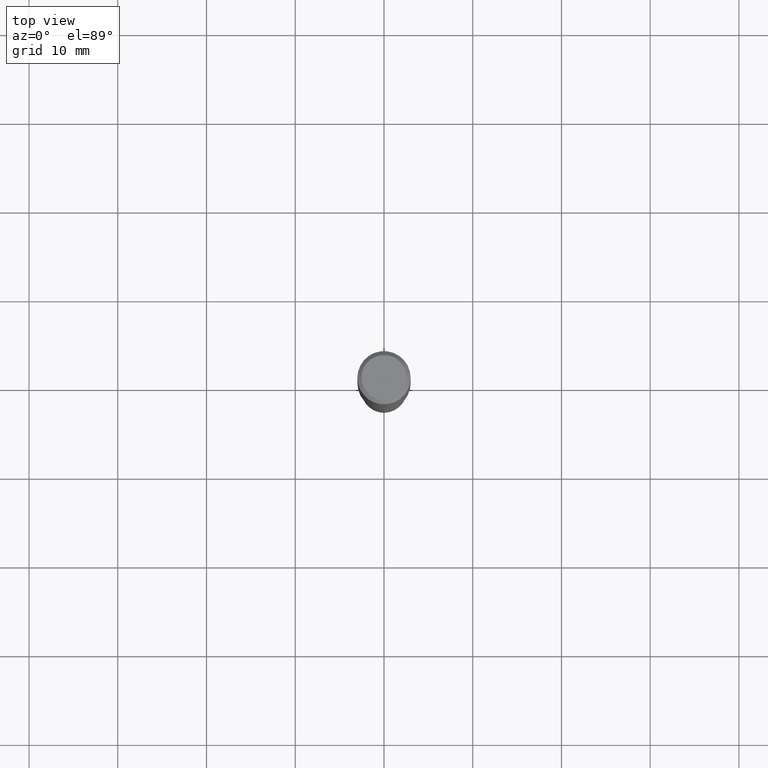
[diagram: clean part render]
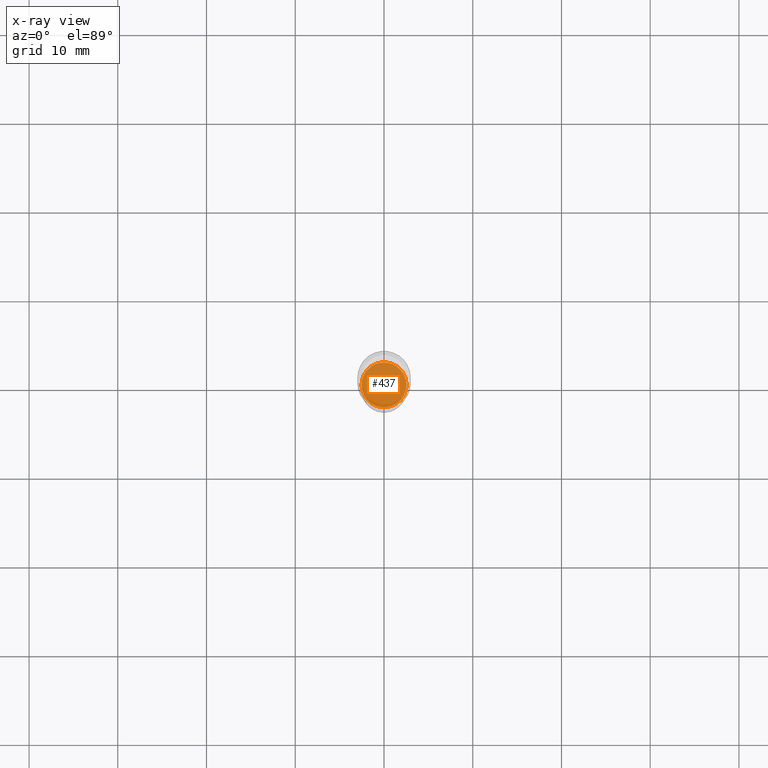
[diagram: x-ray — body ghosted, one internal face saturated and labeled with its STEP entity id]
A machine part, top view, then the same camera in x-ray: the body is ghosted and one INTERNAL B-rep face — a face not visible from any outside direction — is saturated and labeled: STEP entity #437.
In plain terms, the highlighted planar face has unit normal (-0, 0, 1).
Its self-contained STEP definition (entity closure, byte-faithful):
#5 = VERTEX_POINT ( 'NONE', #77 ) ;
#26 = CARTESIAN_POINT ( 'NONE',  ( 4.524117291442502816E-29, -6.459240476859820373E-15, -1.850000000000000311 ) ) ;
#33 = ORIENTED_EDGE ( 'NONE', *, *, #141, .F. ) ;
#35 = DIRECTION ( 'NONE',  ( 1.000000000000000000, -6.982962677686265922E-15, 4.876176775795935793E-29 ) ) ;
#58 = AXIS2_PLACEMENT_3D ( 'NONE', #26, #279, #435 ) ;
#77 = CARTESIAN_POINT ( 'NONE',  ( 0.09990000000000000269, -7.156838448360678443E-15, -1.850000000000000311 ) ) ;
#83 = VERTEX_POINT ( 'NONE', #203 ) ;
#90 = EDGE_LOOP ( 'NONE', ( #478, #33 ) ) ;
#114 = AXIS2_PLACEMENT_3D ( 'NONE', #282, #166, #276 ) ;
#141 = EDGE_CURVE ( 'NONE', #83, #5, #417, .T. ) ;
#144 = PLANE ( 'NONE',  #175 ) ;
#166 = DIRECTION ( 'NONE',  ( -2.445468806185136597E-29, 3.491481338843145583E-15, 1.000000000000000000 ) ) ;
#175 = AXIS2_PLACEMENT_3D ( 'NONE', #336, #329, #35 ) ;
#184 = EDGE_CURVE ( 'NONE', #5, #83, #460, .T. ) ;
#203 = CARTESIAN_POINT ( 'NONE',  ( -0.09990000000000000269, -5.746759056661369166E-15, -1.850000000000000311 ) ) ;
#221 = FACE_OUTER_BOUND ( 'NONE', #90, .T. ) ;
#276 = DIRECTION ( 'NONE',  ( 1.000000000000000000, -6.982962677686267499E-15, 0.000000000000000000 ) ) ;
#279 = DIRECTION ( 'NONE',  ( -2.445468806185136597E-29, 3.491481338843145583E-15, 1.000000000000000000 ) ) ;
#282 = CARTESIAN_POINT ( 'NONE',  ( 4.524117291442502816E-29, -6.459240476859820373E-15, -1.850000000000000311 ) ) ;
#329 = DIRECTION ( 'NONE',  ( -2.438088387897960049E-29, 3.491481338843145188E-15, 1.000000000000000000 ) ) ;
#336 = CARTESIAN_POINT ( 'NONE',  ( 4.524117291442502816E-29, -6.459240476859820373E-15, -1.850000000000000311 ) ) ;
#417 = CIRCLE ( 'NONE', #114, 0.09990000000000000269 ) ;
#435 = DIRECTION ( 'NONE',  ( 1.000000000000000000, -6.982962677686267499E-15, 0.000000000000000000 ) ) ;
#437 = ADVANCED_FACE ( 'NONE', ( #221 ), #144, .F. ) ;
#460 = CIRCLE ( 'NONE', #58, 0.09990000000000000269 ) ;
#478 = ORIENTED_EDGE ( 'NONE', *, *, #184, .F. ) ;